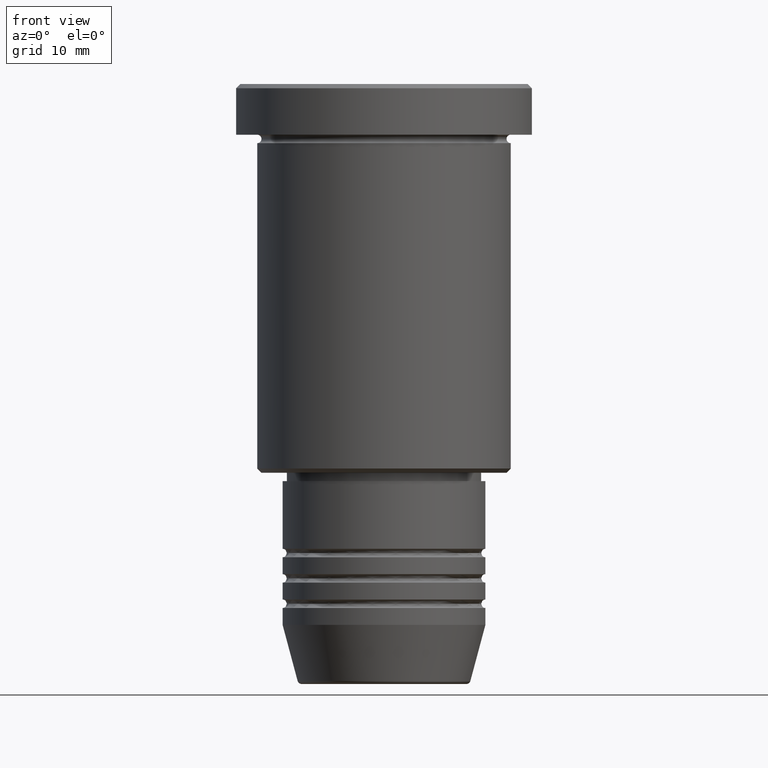
[diagram: clean part render]
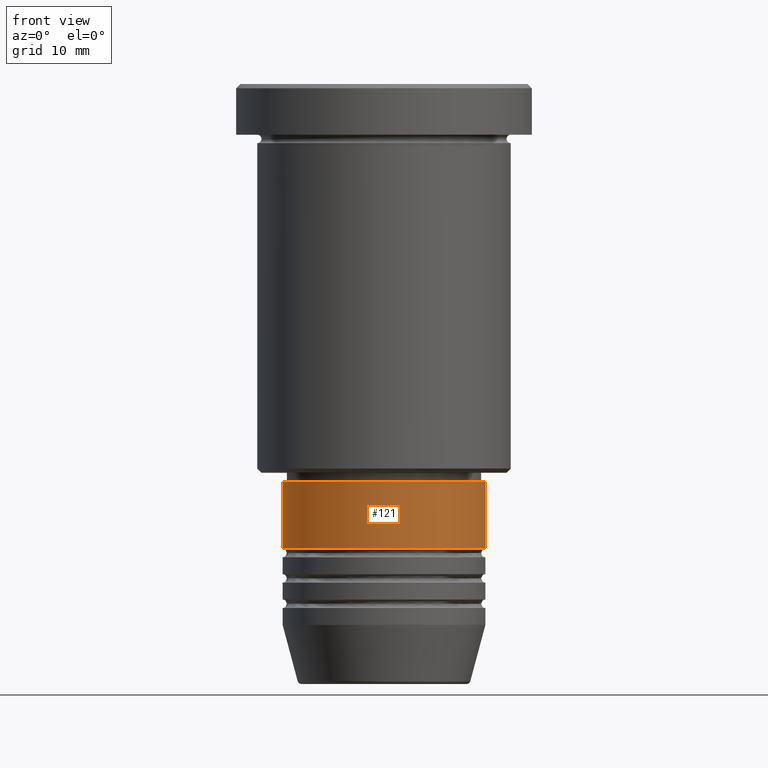
[diagram: same view with one face highlighted and labeled with its STEP entity id]
A machine part, front view. The second image highlights one B-rep face of the part: STEP entity #121.
In plain terms, the highlighted cylindrical surface (partial cylindrical patch) has radius 12 mm, axis along (-0, -0, 1).
Its self-contained STEP definition (entity closure, byte-faithful):
#55 = DIRECTION ( 'NONE',  ( 1.000000000000000000, 0.000000000000000000, 0.000000000000000000 ) ) ;
#121 = ADVANCED_FACE ( 'NONE', ( #612 ), #601, .T. ) ;
#125 = LINE ( 'NONE', #303, #653 ) ;
#170 = VERTEX_POINT ( 'NONE', #709 ) ;
#236 = AXIS2_PLACEMENT_3D ( 'NONE', #326, #535, #895 ) ;
#269 = EDGE_CURVE ( 'NONE', #566, #170, #408, .T. ) ;
#276 = DIRECTION ( 'NONE',  ( 1.000000000000000000, 0.000000000000000000, 0.000000000000000000 ) ) ;
#303 = CARTESIAN_POINT ( 'NONE',  ( 12.00000000000000000, 0.000000000000000000, 0.000000000000000000 ) ) ;
#326 = CARTESIAN_POINT ( 'NONE',  ( 0.000000000000000000, 0.000000000000000000, -47.00000000000000000 ) ) ;
#355 = CARTESIAN_POINT ( 'NONE',  ( 0.000000000000000000, 0.000000000000000000, 0.000000000000000000 ) ) ;
#408 = CIRCLE ( 'NONE', #1074, 12.00000000000000000 ) ;
#454 = ORIENTED_EDGE ( 'NONE', *, *, #1152, .F. ) ;
#476 = ORIENTED_EDGE ( 'NONE', *, *, #269, .T. ) ;
#513 = ORIENTED_EDGE ( 'NONE', *, *, #525, .T. ) ;
#525 = EDGE_CURVE ( 'NONE', #170, #614, #125, .T. ) ;
#535 = DIRECTION ( 'NONE',  ( -0.000000000000000000, -0.000000000000000000, 1.000000000000000000 ) ) ;
#548 = CARTESIAN_POINT ( 'NONE',  ( 0.000000000000000000, 0.000000000000000000, -54.99999999999997868 ) ) ;
#566 = VERTEX_POINT ( 'NONE', #605 ) ;
#587 = ORIENTED_EDGE ( 'NONE', *, *, #946, .F. ) ;
#601 = CYLINDRICAL_SURFACE ( 'NONE', #962, 12.00000000000000000 ) ;
#605 = CARTESIAN_POINT ( 'NONE',  ( -12.00000000000000000, 1.469576158976823947E-15, -54.99999999999997868 ) ) ;
#612 = FACE_OUTER_BOUND ( 'NONE', #664, .T. ) ;
#614 = VERTEX_POINT ( 'NONE', #982 ) ;
#653 = VECTOR ( 'NONE', #1031, 1000.000000000000000 ) ;
#664 = EDGE_LOOP ( 'NONE', ( #454, #476, #513, #587 ) ) ;
#709 = CARTESIAN_POINT ( 'NONE',  ( 12.00000000000000000, 0.000000000000000000, -54.99999999999997868 ) ) ;
#746 = DIRECTION ( 'NONE',  ( -0.000000000000000000, -0.000000000000000000, 1.000000000000000000 ) ) ;
#762 = CARTESIAN_POINT ( 'NONE',  ( -12.00000000000000000, 1.469576158976823947E-15, -47.00000000000000000 ) ) ;
#842 = CARTESIAN_POINT ( 'NONE',  ( -12.00000000000000000, 1.469576158976823947E-15, 0.000000000000000000 ) ) ;
#889 = VERTEX_POINT ( 'NONE', #762 ) ;
#895 = DIRECTION ( 'NONE',  ( 1.000000000000000000, 0.000000000000000000, 0.000000000000000000 ) ) ;
#898 = CIRCLE ( 'NONE', #236, 12.00000000000000000 ) ;
#910 = LINE ( 'NONE', #842, #1150 ) ;
#946 = EDGE_CURVE ( 'NONE', #889, #614, #898, .T. ) ;
#962 = AXIS2_PLACEMENT_3D ( 'NONE', #355, #1078, #55 ) ;
#982 = CARTESIAN_POINT ( 'NONE',  ( 12.00000000000000000, 0.000000000000000000, -47.00000000000000000 ) ) ;
#1031 = DIRECTION ( 'NONE',  ( -0.000000000000000000, -0.000000000000000000, 1.000000000000000000 ) ) ;
#1074 = AXIS2_PLACEMENT_3D ( 'NONE', #548, #1084, #276 ) ;
#1078 = DIRECTION ( 'NONE',  ( -0.000000000000000000, -0.000000000000000000, 1.000000000000000000 ) ) ;
#1084 = DIRECTION ( 'NONE',  ( -0.000000000000000000, -0.000000000000000000, 1.000000000000000000 ) ) ;
#1150 = VECTOR ( 'NONE', #746, 1000.000000000000000 ) ;
#1152 = EDGE_CURVE ( 'NONE', #566, #889, #910, .T. ) ;